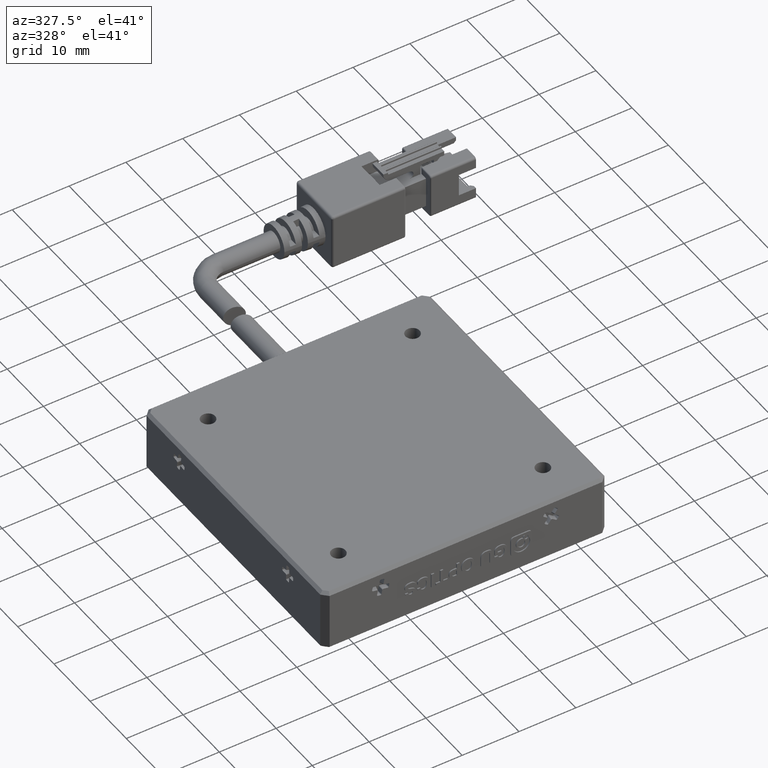
[diagram: clean part render]
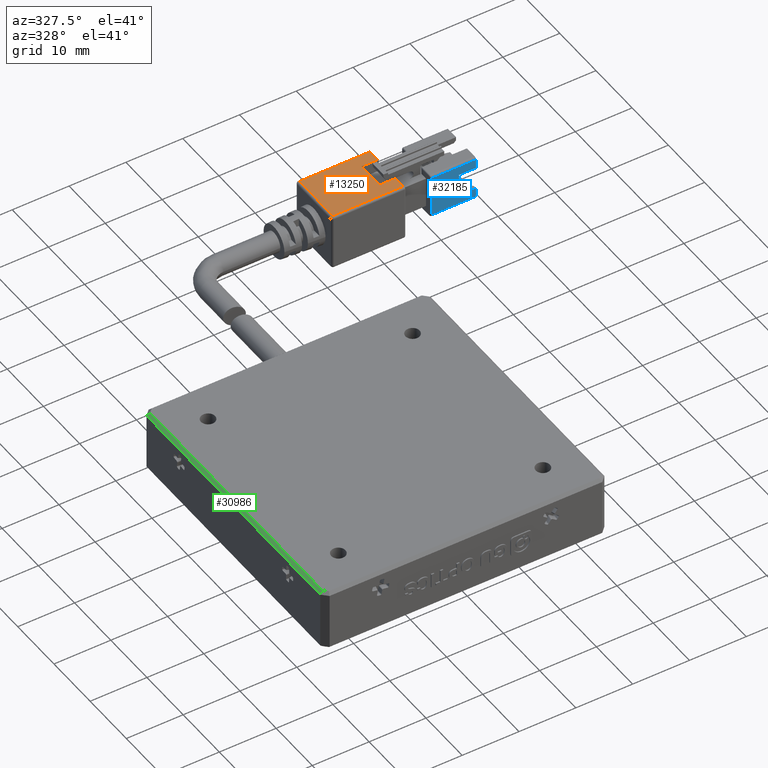
[diagram: same view with three faces highlighted in distinct colors, each labeled with its STEP entity id]
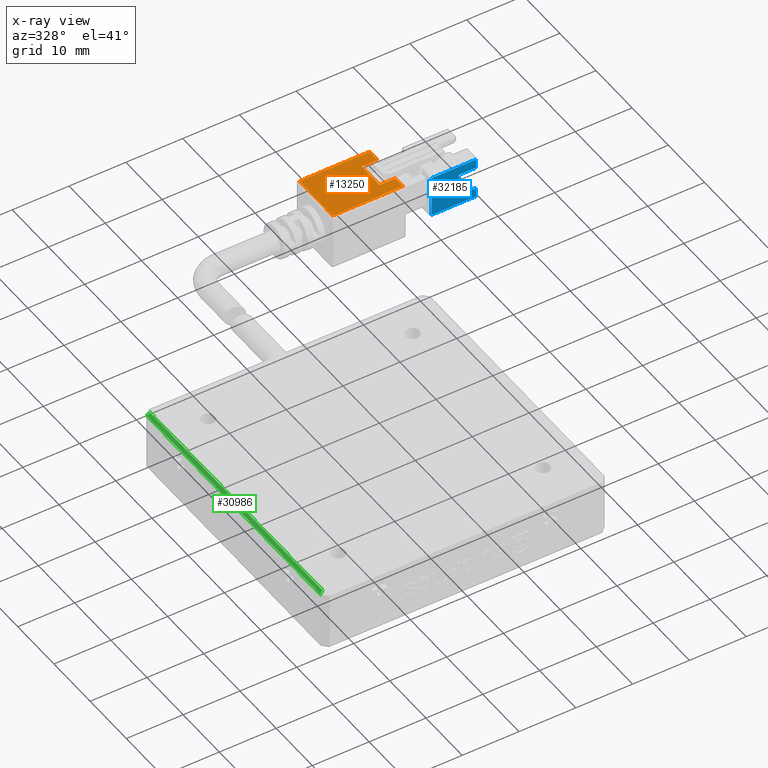
[diagram: x-ray of the same camera — body ghosted, the three highlighted faces saturated]
A machine part, auxiliary view with three faces highlighted in distinct colors.
The next image is the same camera in x-ray (body ghosted, the three faces saturated) — at least one of them is partly hidden behind the body in this view.
Their STEP definitions:

[orange] entity #13250 — the highlighted planar face has unit normal (0, 0, -1).
#70 = EDGE_CURVE ( 'NONE', #218, #321, #36079, .T. ) ;
#218 = VERTEX_POINT ( 'NONE', #38686 ) ;
#321 = VERTEX_POINT ( 'NONE', #26595 ) ;
#776 = VERTEX_POINT ( 'NONE', #4158 ) ;
#1147 = EDGE_CURVE ( 'NONE', #34332, #26079, #6259, .T. ) ;
#1974 = VERTEX_POINT ( 'NONE', #35264 ) ;
#2468 = VECTOR ( 'NONE', #15880, 1000.000000000000000 ) ;
#2554 = ORIENTED_EDGE ( 'NONE', *, *, #70, .F. ) ;
#2683 = CARTESIAN_POINT ( 'NONE',  ( 40.66702531645572100, 59.21113924050632700, 3.749999999999990700 ) ) ;
#3052 = DIRECTION ( 'NONE',  ( 0.0000000000000000000, 2.465190328815661900E-032, -1.000000000000000000 ) ) ;
#3175 = CARTESIAN_POINT ( 'NONE',  ( 53.26702531645571500, 59.61113924050632600, 3.749999999999989800 ) ) ;
#3653 = CARTESIAN_POINT ( 'NONE',  ( 53.06702531645572000, 59.61113924050633300, 3.749999999999989800 ) ) ;
#3988 = LINE ( 'NONE', #2683, #36627 ) ;
#4158 = CARTESIAN_POINT ( 'NONE',  ( 53.06702531645572000, 66.71113924050634100, 3.749999999999990700 ) ) ;
#4398 = VECTOR ( 'NONE', #25316, 1000.000000000000000 ) ;
#5181 = LINE ( 'NONE', #13579, #21506 ) ;
#5650 = AXIS2_PLACEMENT_3D ( 'NONE', #22531, #3052, #25802 ) ;
#5925 = DIRECTION ( 'NONE',  ( 0.0000000000000000000, 1.000000000000000000, 2.465190328815661900E-032 ) ) ;
#6059 = CARTESIAN_POINT ( 'NONE',  ( 53.26702531645571500, 68.81113924050633600, 3.749999999999990700 ) ) ;
#6259 = LINE ( 'NONE', #38860, #23617 ) ;
#6892 = ORIENTED_EDGE ( 'NONE', *, *, #25666, .F. ) ;
#9624 = VERTEX_POINT ( 'NONE', #3653 ) ;
#11341 = LINE ( 'NONE', #3175, #12365 ) ;
#11415 = CARTESIAN_POINT ( 'NONE',  ( 50.26702531645571500, 59.21113924050632700, 3.749999999999990700 ) ) ;
#12048 = LINE ( 'NONE', #21886, #4398 ) ;
#12365 = VECTOR ( 'NONE', #16071, 1000.000000000000000 ) ;
#13250 = ADVANCED_FACE ( 'NONE', ( #22982 ), #32113, .F. ) ;
#13579 = CARTESIAN_POINT ( 'NONE',  ( 53.06702531645572000, 59.21113924050632700, 3.749999999999990700 ) ) ;
#15395 = LINE ( 'NONE', #11415, #31770 ) ;
#15880 = DIRECTION ( 'NONE',  ( 1.000000000000000000, 0.0000000000000000000, 0.0000000000000000000 ) ) ;
#16071 = DIRECTION ( 'NONE',  ( -1.000000000000000000, 0.0000000000000000000, 0.0000000000000000000 ) ) ;
#16074 = LINE ( 'NONE', #28176, #41059 ) ;
#16763 = VERTEX_POINT ( 'NONE', #18091 ) ;
#18091 = CARTESIAN_POINT ( 'NONE',  ( 50.26702531645571500, 66.71113924050634100, 3.749999999999990700 ) ) ;
#21506 = VECTOR ( 'NONE', #39669, 1000.000000000000000 ) ;
#21886 = CARTESIAN_POINT ( 'NONE',  ( 53.06702531645572000, 59.21113924050632700, 3.749999999999990700 ) ) ;
#22496 = DIRECTION ( 'NONE',  ( 1.000000000000000000, 0.0000000000000000000, 0.0000000000000000000 ) ) ;
#22531 = CARTESIAN_POINT ( 'NONE',  ( 53.26702531645571500, 59.21113924050632700, 3.749999999999990700 ) ) ;
#22982 = FACE_OUTER_BOUND ( 'NONE', #34655, .T. ) ;
#23085 = EDGE_CURVE ( 'NONE', #1974, #218, #3988, .T. ) ;
#23617 = VECTOR ( 'NONE', #22496, 1000.000000000000000 ) ;
#23743 = ORIENTED_EDGE ( 'NONE', *, *, #27711, .F. ) ;
#24061 = ORIENTED_EDGE ( 'NONE', *, *, #23085, .F. ) ;
#25316 = DIRECTION ( 'NONE',  ( -0.0000000000000000000, -1.000000000000000000, -2.465190328815661900E-032 ) ) ;
#25666 = EDGE_CURVE ( 'NONE', #9624, #1974, #11341, .T. ) ;
#25802 = DIRECTION ( 'NONE',  ( 0.0000000000000000000, 1.000000000000000000, 2.465190328815661900E-032 ) ) ;
#26079 = VERTEX_POINT ( 'NONE', #38151 ) ;
#26595 = CARTESIAN_POINT ( 'NONE',  ( 53.06702531645572000, 68.81113924050633600, 3.749999999999990700 ) ) ;
#26913 = ORIENTED_EDGE ( 'NONE', *, *, #39187, .F. ) ;
#27687 = DIRECTION ( 'NONE',  ( -0.0000000000000000000, -1.000000000000000000, -2.465190328815661900E-032 ) ) ;
#27711 = EDGE_CURVE ( 'NONE', #26079, #9624, #5181, .T. ) ;
#28176 = CARTESIAN_POINT ( 'NONE',  ( 53.26702531645571500, 66.71113924050634100, 3.749999999999990700 ) ) ;
#28312 = DIRECTION ( 'NONE',  ( -1.000000000000000000, -0.0000000000000000000, -0.0000000000000000000 ) ) ;
#29263 = EDGE_CURVE ( 'NONE', #776, #16763, #16074, .T. ) ;
#29778 = CARTESIAN_POINT ( 'NONE',  ( 50.26702531645571500, 61.71113924050633400, 3.749999999999989800 ) ) ;
#30845 = EDGE_CURVE ( 'NONE', #321, #776, #12048, .T. ) ;
#31770 = VECTOR ( 'NONE', #27687, 1000.000000000000000 ) ;
#32113 = PLANE ( 'NONE',  #5650 ) ;
#32542 = ORIENTED_EDGE ( 'NONE', *, *, #1147, .F. ) ;
#32930 = ORIENTED_EDGE ( 'NONE', *, *, #29263, .F. ) ;
#34332 = VERTEX_POINT ( 'NONE', #29778 ) ;
#34649 = ORIENTED_EDGE ( 'NONE', *, *, #30845, .F. ) ;
#34655 = EDGE_LOOP ( 'NONE', ( #23743, #32542, #26913, #32930, #34649, #2554, #24061, #6892 ) ) ;
#35264 = CARTESIAN_POINT ( 'NONE',  ( 40.66702531645572100, 59.61113924050632600, 3.749999999999989800 ) ) ;
#36079 = LINE ( 'NONE', #6059, #2468 ) ;
#36627 = VECTOR ( 'NONE', #5925, 1000.000000000000000 ) ;
#38151 = CARTESIAN_POINT ( 'NONE',  ( 53.06702531645572000, 61.71113924050633400, 3.749999999999989800 ) ) ;
#38686 = CARTESIAN_POINT ( 'NONE',  ( 40.66702531645572100, 68.81113924050633600, 3.749999999999990700 ) ) ;
#38860 = CARTESIAN_POINT ( 'NONE',  ( 53.26702531645571500, 61.71113924050633400, 3.749999999999989800 ) ) ;
#39187 = EDGE_CURVE ( 'NONE', #16763, #34332, #15395, .T. ) ;
#39669 = DIRECTION ( 'NONE',  ( -0.0000000000000000000, -1.000000000000000000, -2.465190328815661900E-032 ) ) ;
#41059 = VECTOR ( 'NONE', #28312, 1000.000000000000000 ) ;

[blue] entity #32185 — the highlighted planar face has unit normal (0, 1, -0).
#572 = DIRECTION ( 'NONE',  ( 0.0000000000000000000, 8.673617379884034200E-017, 1.000000000000000000 ) ) ;
#599 = CARTESIAN_POINT ( 'NONE',  ( 66.26702531645572900, 60.21113924050634100, 2.350000000000000500 ) ) ;
#1469 = VERTEX_POINT ( 'NONE', #9811 ) ;
#2790 = CARTESIAN_POINT ( 'NONE',  ( 66.26702531645572900, 60.21113924050634100, -4.850000000000000500 ) ) ;
#3675 = PLANE ( 'NONE',  #27826 ) ;
#3832 = DIRECTION ( 'NONE',  ( 1.000000000000000000, 0.0000000000000000000, 0.0000000000000000000 ) ) ;
#4024 = LINE ( 'NONE', #10505, #12675 ) ;
#4879 = LINE ( 'NONE', #26495, #29875 ) ;
#5313 = LINE ( 'NONE', #41968, #38942 ) ;
#6419 = ORIENTED_EDGE ( 'NONE', *, *, #14561, .F. ) ;
#6690 = VERTEX_POINT ( 'NONE', #9004 ) ;
#6972 = DIRECTION ( 'NONE',  ( -1.000000000000000000, -0.0000000000000000000, -0.0000000000000000000 ) ) ;
#7088 = DIRECTION ( 'NONE',  ( -0.0000000000000000000, -8.673617379884034200E-017, -1.000000000000000000 ) ) ;
#7238 = VECTOR ( 'NONE', #7088, 1000.000000000000000 ) ;
#7241 = DIRECTION ( 'NONE',  ( -0.0000000000000000000, -8.673617379884034200E-017, -1.000000000000000000 ) ) ;
#7540 = EDGE_CURVE ( 'NONE', #1469, #30302, #24664, .T. ) ;
#8232 = VECTOR ( 'NONE', #26500, 1000.000000000000000 ) ;
#8272 = LINE ( 'NONE', #16757, #7238 ) ;
#8940 = ORIENTED_EDGE ( 'NONE', *, *, #19768, .F. ) ;
#9004 = CARTESIAN_POINT ( 'NONE',  ( 66.26702531645572900, 60.21113924050634100, 0.7499999999999997800 ) ) ;
#9492 = CARTESIAN_POINT ( 'NONE',  ( 63.26702531645572900, 60.21113924050634100, -3.250000000000000400 ) ) ;
#9811 = CARTESIAN_POINT ( 'NONE',  ( 63.26702531645572900, 60.21113924050634100, 0.7499999999999997800 ) ) ;
#10043 = EDGE_CURVE ( 'NONE', #10613, #29067, #32397, .T. ) ;
#10505 = CARTESIAN_POINT ( 'NONE',  ( 66.26702531645572900, 60.21113924050634100, -5.250000000000000900 ) ) ;
#10613 = VERTEX_POINT ( 'NONE', #37511 ) ;
#10748 = FACE_OUTER_BOUND ( 'NONE', #22865, .T. ) ;
#12675 = VECTOR ( 'NONE', #7241, 1000.000000000000000 ) ;
#14561 = EDGE_CURVE ( 'NONE', #6690, #1469, #4879, .T. ) ;
#14859 = VERTEX_POINT ( 'NONE', #28354 ) ;
#15528 = EDGE_CURVE ( 'NONE', #14859, #10613, #8272, .T. ) ;
#16757 = CARTESIAN_POINT ( 'NONE',  ( 66.26702531645572900, 60.21113924050634100, -5.250000000000000900 ) ) ;
#16868 = CARTESIAN_POINT ( 'NONE',  ( 66.26702531645572900, 60.21113924050634100, 2.350000000000000500 ) ) ;
#19231 = DIRECTION ( 'NONE',  ( -0.0000000000000000000, 8.673617379884034200E-017, 1.000000000000000000 ) ) ;
#19768 = EDGE_CURVE ( 'NONE', #29067, #32429, #5313, .T. ) ;
#20046 = DIRECTION ( 'NONE',  ( 0.0000000000000000000, 1.000000000000000000, -8.673617379884034200E-017 ) ) ;
#21314 = CARTESIAN_POINT ( 'NONE',  ( 58.46702531645571800, 60.21113924050633400, 2.350000000000000500 ) ) ;
#22270 = DIRECTION ( 'NONE',  ( -1.000000000000000000, -0.0000000000000000000, -0.0000000000000000000 ) ) ;
#22373 = ORIENTED_EDGE ( 'NONE', *, *, #15528, .F. ) ;
#22708 = EDGE_CURVE ( 'NONE', #32429, #28956, #23946, .T. ) ;
#22865 = EDGE_LOOP ( 'NONE', ( #8940, #38554, #22373, #34556, #23459, #6419, #25794, #35064 ) ) ;
#23233 = CARTESIAN_POINT ( 'NONE',  ( 66.26702531645572900, 60.21113924050634100, -3.250000000000000400 ) ) ;
#23459 = ORIENTED_EDGE ( 'NONE', *, *, #7540, .F. ) ;
#23946 = LINE ( 'NONE', #599, #40209 ) ;
#24664 = LINE ( 'NONE', #27357, #41903 ) ;
#25794 = ORIENTED_EDGE ( 'NONE', *, *, #30085, .F. ) ;
#26495 = CARTESIAN_POINT ( 'NONE',  ( 66.26702531645572900, 60.21113924050634100, 0.7499999999999997800 ) ) ;
#26500 = DIRECTION ( 'NONE',  ( 1.000000000000000000, 0.0000000000000000000, 0.0000000000000000000 ) ) ;
#27209 = DIRECTION ( 'NONE',  ( -0.0000000000000000000, -8.673617379884034200E-017, -1.000000000000000000 ) ) ;
#27357 = CARTESIAN_POINT ( 'NONE',  ( 63.26702531645572900, 60.21113924050634100, -5.250000000000000900 ) ) ;
#27826 = AXIS2_PLACEMENT_3D ( 'NONE', #39534, #20046, #572 ) ;
#28354 = CARTESIAN_POINT ( 'NONE',  ( 66.26702531645572900, 60.21113924050634100, -3.250000000000000400 ) ) ;
#28956 = VERTEX_POINT ( 'NONE', #16868 ) ;
#29067 = VERTEX_POINT ( 'NONE', #37009 ) ;
#29875 = VECTOR ( 'NONE', #6972, 1000.000000000000000 ) ;
#30085 = EDGE_CURVE ( 'NONE', #28956, #6690, #4024, .T. ) ;
#30302 = VERTEX_POINT ( 'NONE', #9492 ) ;
#32185 = ADVANCED_FACE ( 'NONE', ( #10748 ), #3675, .F. ) ;
#32397 = LINE ( 'NONE', #2790, #41011 ) ;
#32429 = VERTEX_POINT ( 'NONE', #21314 ) ;
#34258 = LINE ( 'NONE', #23233, #8232 ) ;
#34556 = ORIENTED_EDGE ( 'NONE', *, *, #40798, .F. ) ;
#35064 = ORIENTED_EDGE ( 'NONE', *, *, #22708, .F. ) ;
#37009 = CARTESIAN_POINT ( 'NONE',  ( 58.46702531645571800, 60.21113924050633400, -4.850000000000000500 ) ) ;
#37511 = CARTESIAN_POINT ( 'NONE',  ( 66.26702531645572900, 60.21113924050634100, -4.850000000000000500 ) ) ;
#38554 = ORIENTED_EDGE ( 'NONE', *, *, #10043, .F. ) ;
#38942 = VECTOR ( 'NONE', #19231, 1000.000000000000000 ) ;
#39534 = CARTESIAN_POINT ( 'NONE',  ( 66.26702531645572900, 60.21113924050634100, -5.250000000000000900 ) ) ;
#40209 = VECTOR ( 'NONE', #3832, 1000.000000000000000 ) ;
#40798 = EDGE_CURVE ( 'NONE', #30302, #14859, #34258, .T. ) ;
#41011 = VECTOR ( 'NONE', #22270, 1000.000000000000000 ) ;
#41903 = VECTOR ( 'NONE', #27209, 1000.000000000000000 ) ;
#41968 = CARTESIAN_POINT ( 'NONE',  ( 58.46702531645571800, 60.21113924050634100, -5.250000000000000900 ) ) ;

[green] entity #30986 — the highlighted planar face has unit normal (0.7071, 0, -0.7071).
#679 = CARTESIAN_POINT ( 'NONE',  ( -5.232974683544267900, 14.21113924050633600, 2.250000000000000900 ) ) ;
#770 = AXIS2_PLACEMENT_3D ( 'NONE', #679, #23417, #3920 ) ;
#1733 = DIRECTION ( 'NONE',  ( 0.0000000000000000000, 1.000000000000000000, 0.0000000000000000000 ) ) ;
#3920 = DIRECTION ( 'NONE',  ( -0.7071067811865425800, 0.0000000000000000000, -0.7071067811865525700 ) ) ;
#6519 = LINE ( 'NONE', #15179, #23891 ) ;
#8006 = EDGE_CURVE ( 'NONE', #38429, #29486, #10196, .T. ) ;
#9990 = PLANE ( 'NONE',  #770 ) ;
#10196 = LINE ( 'NONE', #33437, #18913 ) ;
#10593 = DIRECTION ( 'NONE',  ( 0.0000000000000000000, 1.000000000000000000, 0.0000000000000000000 ) ) ;
#14464 = VECTOR ( 'NONE', #21936, 1000.000000000000000 ) ;
#14894 = EDGE_CURVE ( 'NONE', #38429, #40868, #23149, .T. ) ;
#15179 = CARTESIAN_POINT ( 'NONE',  ( -5.732974683544282100, 38.21113924050633400, 1.749999999999978500 ) ) ;
#17013 = CARTESIAN_POINT ( 'NONE',  ( -5.232974683544267900, -9.581753978307105500, 2.250000000000001800 ) ) ;
#17938 = CARTESIAN_POINT ( 'NONE',  ( -5.732974683544282100, 14.21113924050633600, 1.749999999999978500 ) ) ;
#18776 = CARTESIAN_POINT ( 'NONE',  ( -5.232974683544267900, -9.581753978307105500, 2.250000000000000900 ) ) ;
#18858 = ORIENTED_EDGE ( 'NONE', *, *, #8006, .T. ) ;
#18913 = VECTOR ( 'NONE', #10593, 1000.000000000000000 ) ;
#20532 = CARTESIAN_POINT ( 'NONE',  ( -5.732974683544282100, -9.788860759493660500, 1.749999999999978500 ) ) ;
#21256 = EDGE_LOOP ( 'NONE', ( #35662, #31526, #18858, #41739 ) ) ;
#21936 = DIRECTION ( 'NONE',  ( -0.6785983445458417800, -0.2810846377148201200, -0.6785983445458523300 ) ) ;
#22995 = CARTESIAN_POINT ( 'NONE',  ( -5.232974683544267900, 38.00403245931977400, 2.250000000000000000 ) ) ;
#23149 = LINE ( 'NONE', #18776, #14464 ) ;
#23417 = DIRECTION ( 'NONE',  ( 0.7071067811865525700, 0.0000000000000000000, -0.7071067811865425800 ) ) ;
#23891 = VECTOR ( 'NONE', #38001, 1000.000000000000000 ) ;
#25247 = EDGE_CURVE ( 'NONE', #40868, #42056, #30803, .T. ) ;
#26829 = CARTESIAN_POINT ( 'NONE',  ( -5.732974683544282100, 38.21113924050632700, 1.749999999999978500 ) ) ;
#29486 = VERTEX_POINT ( 'NONE', #22995 ) ;
#29803 = VECTOR ( 'NONE', #1733, 1000.000000000000000 ) ;
#30803 = LINE ( 'NONE', #17938, #29803 ) ;
#30986 = ADVANCED_FACE ( 'NONE', ( #36495 ), #9990, .F. ) ;
#31526 = ORIENTED_EDGE ( 'NONE', *, *, #14894, .F. ) ;
#33215 = EDGE_CURVE ( 'NONE', #42056, #29486, #6519, .T. ) ;
#33437 = CARTESIAN_POINT ( 'NONE',  ( -5.232974683544267900, 14.21113924050633600, 2.250000000000000900 ) ) ;
#35662 = ORIENTED_EDGE ( 'NONE', *, *, #25247, .F. ) ;
#36495 = FACE_OUTER_BOUND ( 'NONE', #21256, .T. ) ;
#38001 = DIRECTION ( 'NONE',  ( 0.6785983445458417800, -0.2810846377148201200, 0.6785983445458523300 ) ) ;
#38429 = VERTEX_POINT ( 'NONE', #17013 ) ;
#40868 = VERTEX_POINT ( 'NONE', #20532 ) ;
#41739 = ORIENTED_EDGE ( 'NONE', *, *, #33215, .F. ) ;
#42056 = VERTEX_POINT ( 'NONE', #26829 ) ;